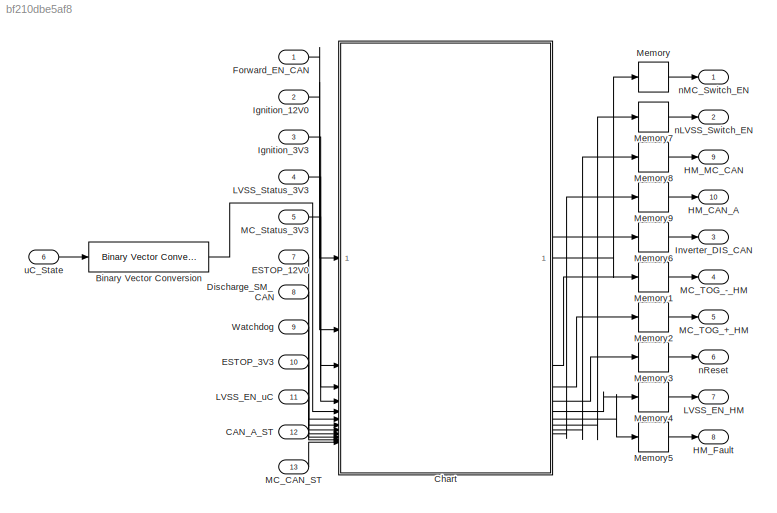
MODEL slx_bf210dbe5af8
KIND model
CONFIG AbsTol = auto
CONFIG EnableMultiTasking = off
CONFIG FixedStep = 0.01
CONFIG MaxStep = auto
CONFIG MinStep = auto
CONFIG RelTol = 1e-3
CONFIG SampleTimeConstraint = Unconstrained
CONFIG SolverName = FixedStepAuto
CONFIG StartTime = 0.0
CONFIG StopTime = 10.0
BLOCK [Reference] Binary Vector Conversion  REF=msbUtilities/Binary Vector Conversion
  SourceBlock = msbUtilities/Binary Vector Conversion
  SourceType = Binary Vector Conversion
BLOCK [Inport] CAN_A_ST
  Port = 12
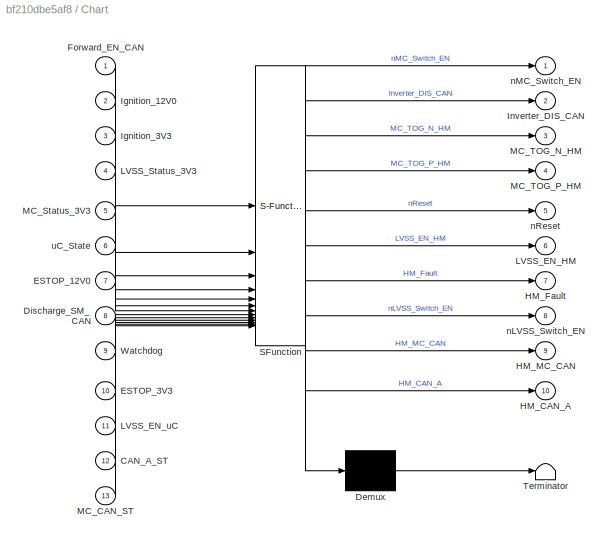
BLOCK [SubSystem] Chart
  ErrorFcn = Stateflow.Translate.translate
  PermitHierarchicalResolution = ExplicitOnly
  PortSchema = {"entries":[{"content":{"sides":[{"content":{"connectorIds":["In1","In2","In3","In4","In5","In6","In7","In8","In9","In10","In11","In12","In13"]},"type":"ConnectorPlacement.EquallySpacedRectSide","uuid":"6d1a41ef-67e8-41d6-9adb-1761831f6d0e"},{"content":{"connectorIds":["Out1","Out8","Out9","Out10","Out2","Out3","Out4","Out5","Out6","Out7"],"side":"RIGHT"},"type":"ConnectorPlacement.EquallySpacedRe...<+362ch>
  SFBlockType = Chart
  TreatAsAtomicUnit = on
BLOCK [Demux] Chart/ Demux 
  Outputs = 1
BLOCK [S-Function] Chart/ SFunction 
  EnableBusSupport = on
  FunctionName = sf_sfun
  PortCounts = [13 11]
  SFcnIsStateOwnerBlock = off
  SFunctionDeploymentMode = off
  Tag = Stateflow S-Function 3
BLOCK [Terminator] Chart/ Terminator 
BLOCK [Inport] Chart/CAN_A_ST
  Port = 12
BLOCK [Inport] Chart/Discharge_SM_CAN
  Port = 8
BLOCK [Inport] Chart/ESTOP_12V0
  Port = 7
BLOCK [Inport] Chart/ESTOP_3V3
  Port = 10
BLOCK [Inport] Chart/Forward_EN_CAN
BLOCK [Outport] Chart/HM_CAN_A
  Port = 10
BLOCK [Outport] Chart/HM_Fault
  Port = 7
BLOCK [Outport] Chart/HM_MC_CAN
  Port = 9
BLOCK [Inport] Chart/Ignition_12V0
  Port = 2
BLOCK [Inport] Chart/Ignition_3V3
  Port = 3
BLOCK [Outport] Chart/Inverter_DIS_CAN
  Port = 2
BLOCK [Outport] Chart/LVSS_EN_HM
  Port = 6
BLOCK [Inport] Chart/LVSS_EN_uC
  Port = 11
BLOCK [Inport] Chart/LVSS_Status_3V3
  Port = 4
BLOCK [Inport] Chart/MC_CAN_ST
  Port = 13
BLOCK [Inport] Chart/MC_Status_3V3
  Port = 5
BLOCK [Outport] Chart/MC_TOG_N_HM
  Port = 3
BLOCK [Outport] Chart/MC_TOG_P_HM
  Port = 4
BLOCK [Inport] Chart/Watchdog
  Port = 9
BLOCK [Outport] Chart/nLVSS_Switch_EN
  Port = 8
BLOCK [Outport] Chart/nMC_Switch_EN
BLOCK [Outport] Chart/nReset
  Port = 5
BLOCK [Inport] Chart/uC_State
  Port = 6
BLOCK [Inport] Discharge_SM_CAN
  Port = 8
BLOCK [Inport] ESTOP_12V0
  OutDataTypeStr = boolean
  Port = 7
BLOCK [Inport] ESTOP_3V3
  OutDataTypeStr = boolean
  Port = 10
BLOCK [Inport] Forward_EN_CAN
  OutDataTypeStr = uint32
BLOCK [Outport] HM_CAN_A
  NameLocation = right
  Port = 10
BLOCK [Outport] HM_Fault
  Port = 8
BLOCK [Outport] HM_MC_CAN
  NameLocation = right
  Port = 9
BLOCK [Inport] Ignition_12V0
  OutDataTypeStr = boolean
  Port = 2
BLOCK [Inport] Ignition_3V3
  OutDataTypeStr = boolean
  Port = 3
BLOCK [Outport] Inverter_DIS_CAN
  NameLocation = right
  Port = 3
BLOCK [Outport] LVSS_EN_HM
  Port = 7
BLOCK [Inport] LVSS_EN_uC
  OutDataTypeStr = double
  Port = 11
BLOCK [Inport] LVSS_Status_3V3
  OutDataTypeStr = boolean
  Port = 4
BLOCK [Inport] MC_CAN_ST
  Port = 13
BLOCK [Inport] MC_Status_3V3
  OutDataTypeStr = boolean
  Port = 5
BLOCK [Outport] MC_TOG_+_HM
  Port = 5
BLOCK [Outport] MC_TOG_-_HM
  Port = 4
BLOCK [Memory] Memory
BLOCK [Memory] Memory1
BLOCK [Memory] Memory2
BLOCK [Memory] Memory3
BLOCK [Memory] Memory4
BLOCK [Memory] Memory5
BLOCK [Memory] Memory6
BLOCK [Memory] Memory7
BLOCK [Memory] Memory8
BLOCK [Memory] Memory9
BLOCK [Inport] Watchdog
  Port = 9
BLOCK [Outport] nLVSS_Switch_EN
  Port = 2
BLOCK [Outport] nMC_Switch_EN
BLOCK [Outport] nReset
  Port = 6
BLOCK [Inport] uC_State
  Port = 6
  PortDimensions = 4
LINE Binary Vector Conversion:1 -> Chart:6
LINE CAN_A_ST:1 -> Chart:12
LINE Chart:1 -> Memory:1
LINE Chart:10 -> Memory9:1
LINE Chart:2 -> Memory6:1
LINE Chart:3 -> Memory1:1
LINE Chart:4 -> Memory2:1
LINE Chart:5 -> Memory3:1
LINE Chart:6 -> Memory4:1
LINE Chart:7 -> Memory5:1
LINE Chart:8 -> Memory7:1
LINE Chart:9 -> Memory8:1
LINE Discharge_SM_CAN:1 -> Chart:8
LINE ESTOP_12V0:1 -> Chart:7
LINE ESTOP_3V3:1 -> Chart:10
LINE Forward_EN_CAN:1 -> Chart:1
LINE Ignition_12V0:1 -> Chart:2
LINE Ignition_3V3:1 -> Chart:3
LINE LVSS_EN_uC:1 -> Chart:11
LINE LVSS_Status_3V3:1 -> Chart:4
LINE MC_CAN_ST:1 -> Chart:13
LINE MC_Status_3V3:1 -> Chart:5
LINE Memory1:1 -> MC_TOG_-_HM:1
LINE Memory2:1 -> MC_TOG_+_HM:1
LINE Memory3:1 -> nReset:1
LINE Memory4:1 -> LVSS_EN_HM:1
LINE Memory5:1 -> HM_Fault:1
LINE Memory6:1 -> Inverter_DIS_CAN:1
LINE Memory7:1 -> nLVSS_Switch_EN:1
LINE Memory8:1 -> HM_MC_CAN:1
LINE Memory9:1 -> HM_CAN_A:1
LINE Memory:1 -> nMC_Switch_EN:1
LINE Watchdog:1 -> Chart:9
LINE uC_State:1 -> Binary Vector Conversion:1
CHART Chart states=38 transitions=49
  STATE_LABEL 'Normal_Operation'
  STATE_LABEL 'ESTOP_Checking'
  STATE_LABEL 'count\nentry:\nESTOP_Counter = ESTOP_Counter + 1;\n'
  STATE_LABEL 'ESTOP_Inactive\nentry:\nHM_Fault = 0;\nESTOP_Counter = 0;\nnMC_Switch_EN = 0;\nnLVSS_Switch_EN = 0;\nLVSS_EN_HM = LVSS_EN_uC;'
  STATE_LABEL '[ESTOP_3V3 == 1 && uC_State ~= 7 && uC_State ~= 6 ]'
  STATE_LABEL '[ESTOP_3V3 == 0 || uC_State == 7 || uC_State == 6 ]'
  STATE_LABEL 'after(0.1,sec)'
  STATE_LABEL 'Watchdog_Checking'
  STATE_LABEL 'WD_Low\nentry:\nWD_Counter = 0;'
  STATE_LABEL 'Counting\nentry:\nWD_Counter = WD_Counter + 1;'
  STATE_LABEL 'after(0.5, sec)'
  STATE_LABEL 'WD_High\nentry:\nWD_Counter = 0;'
  STATE_LABEL 'Counting\nentry:\nWD_Counter = WD_Counter + 1;'
  STATE_LABEL 'after(0.5, sec)'
  STATE_LABEL '[Watchdog == 1]'
  STATE_LABEL '[Watchdog == 0]'
  STATE_LABEL 'Invalid_State_Checking'
  STATE_LABEL 'count\nentry:\nInvalid_State_Counter = Invalid_State_Counter + 1;\n'
  STATE_LABEL 'Invalid_State_Inactive\nentry:\nHM_Fault = 0;\nInvalid_State_Counter = 0;\nnMC_Switch_EN = 0;\nnLVSS_Switch_EN = 0;\nLVSS_EN_HM = LVSS_EN_uC;'
  STATE_LABEL '[(Forward_EN_CAN ~= 1 || Ignition_3V3 ~= 1) && uC_State == 3]'
  STATE_LABEL '[~((Forward_EN_CAN ~= 1 || Ignition_3V3 ~= 1) && uC_State == 3)]'
  STATE_LABEL 'after(0.5,sec)'
  STATE_LABEL 'Ignition_Level_Checking'
  STATE_LABEL 'count\nentry:\nIgnition_State_Counter = Ignition_State_Counter + 1;\n'
  STATE_LABEL 'Ignition_State_Inactive\nentry:\nHM_Fault = 0;\nIgnition_State_Counter = 0;\nnMC_Switch_EN = 0;\nnLVSS_Switch_EN = 0;\nLVSS_EN_HM = LVSS_EN_uC;\n'
  STATE_LABEL '[Ignition_3V3 ~= Ignition_12V0  && uC_State ~= 6 ]'
  STATE_LABEL '[Ignition_3V3 == Ignition_12V0  || uC_State == 6 ]'
  STATE_LABEL 'after(0.5,sec)'
  STATE_LABEL 'ESTOP_Level_Checking'
  STATE_LABEL 'count\nentry:\nESTOP_State_Counter = ESTOP_State_Counter + 1;\n'
  STATE_LABEL 'ESTOP_State_Inactive\nentry:\nHM_Fault = 0;\nESTOP_State_Counter = 0;\nnMC_Switch_EN = 0;\nnLVSS_Switch_EN = 0;\nLVSS_EN_HM = LVSS_EN_uC;\n'
  STATE_LABEL '[ESTOP_3V3 ~= ESTOP_12V0  && uC_State ~= 6 ]'
  STATE_LABEL '[ESTOP_3V3 == ESTOP_12V0  || uC_State == 6 ]'
  STATE_LABEL 'after(0.5,sec)'
  STATE_LABEL 'LVSS_Checking'
  STATE_LABEL 'count\nentry:\nLVSS_Counter = LVSS_Counter + 1;\n'
  STATE_LABEL 'Invalid_State_Inactive\nentry:\nHM_Fault = 0;\nLVSS_Counter = 0;\nnMC_Switch_EN = 0;\nnLVSS_Switch_EN = 0;\nLVSS_EN_HM = LVSS_EN_uC;\n'
  STATE_LABEL '[LVSS_Status_3V3 ~= LVSS_EN_uC  && uC_State ~= 6 ]'
  STATE_LABEL '[LVSS_Status_3V3 == LVSS_EN_uC  || uC_State == 6 ]'
  STATE_LABEL 'after(0.5,sec)'
CHART  states=0 transitions=0
